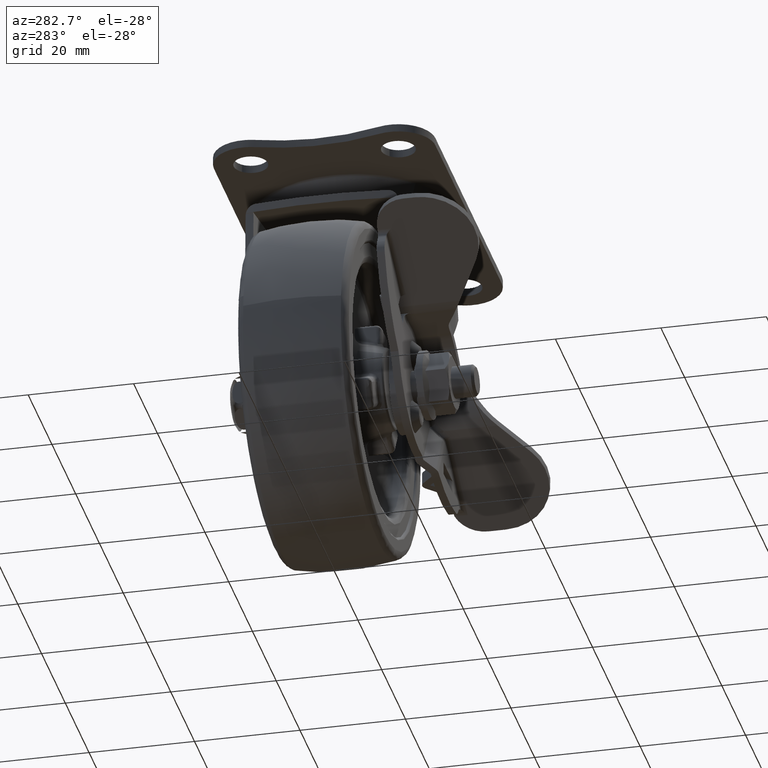
[diagram: clean part render]
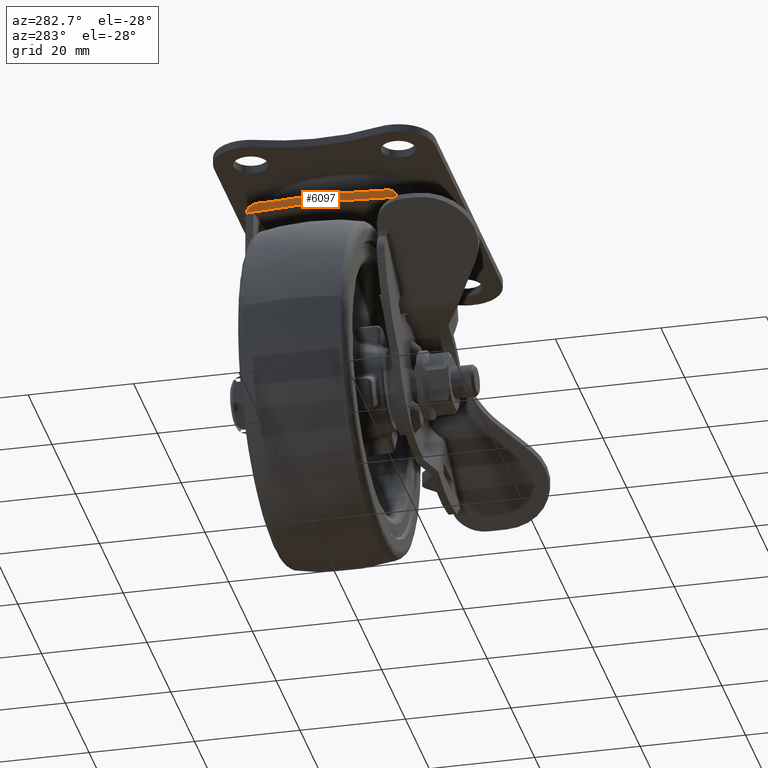
[diagram: same view with one face highlighted and labeled with its STEP entity id]
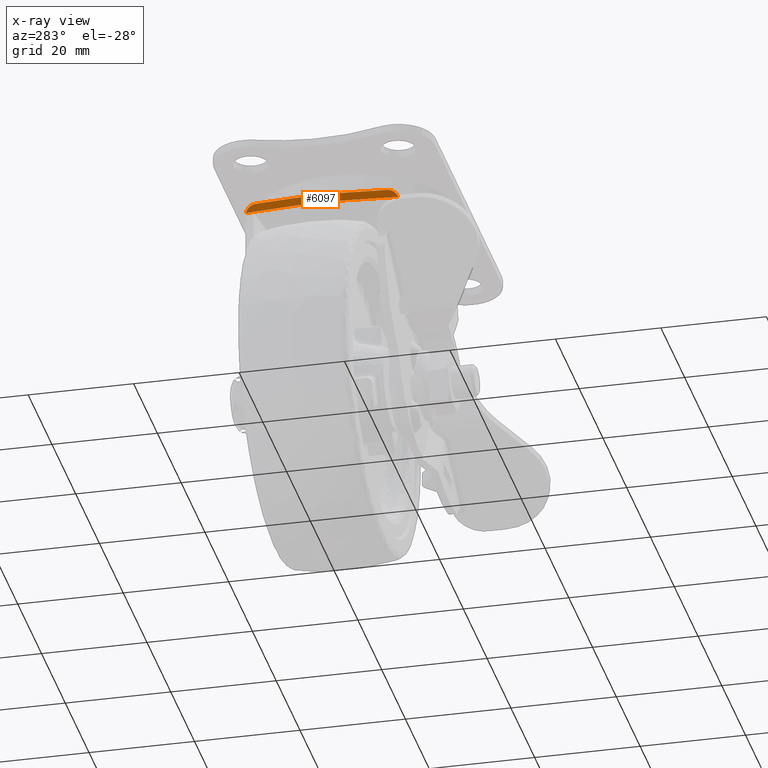
[diagram: x-ray of the same camera — body ghosted, the highlighted face saturated]
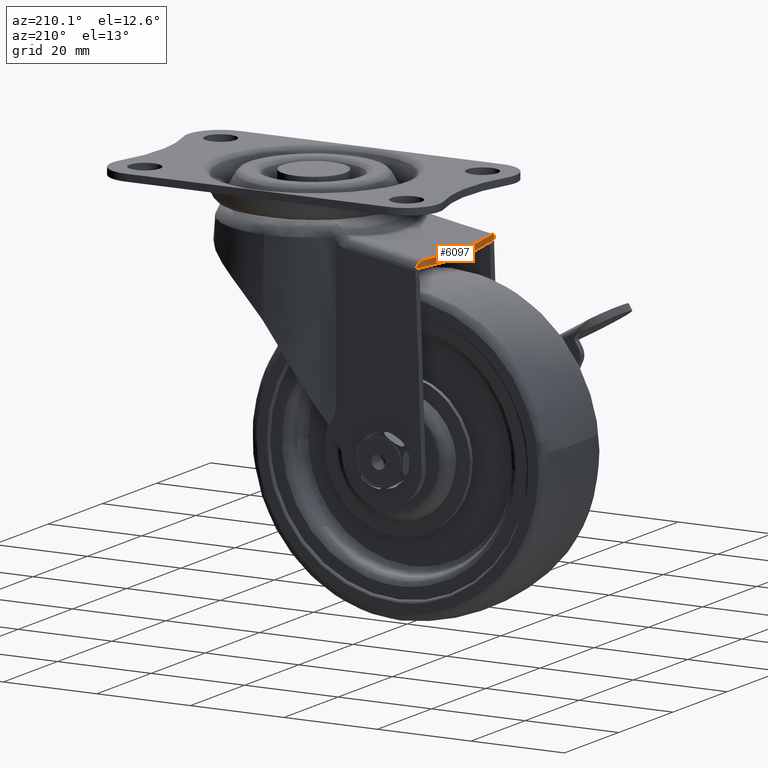
[diagram: same view with one face highlighted and labeled with its STEP entity id]
A machine part, auxiliary view. The second image highlights one B-rep face of the part: STEP entity #6097.
The next image is the same camera in x-ray: the body ghosted, the highlighted face saturated — about 0% of this face is hidden behind the body in this view.
A second angle (auxiliary view) of the same face is appended — the face is thin or edge-on in the first view.
In plain terms, the highlighted face is a freeform B-spline surface patch.
Its self-contained STEP definition (entity closure, byte-faithful):
#2417=CARTESIAN_POINT('',(-30.212149457391099,-14.436506996430680,-11.270600476209360));
#2418=VERTEX_POINT('',#2417);
#2429=CARTESIAN_POINT('',(-30.503806207269850,-12.999999860846460,-11.322026447375920));
#2430=VERTEX_POINT('',#2429);
#2431=CARTESIAN_POINT('',(-30.503806207269850,-12.999999860846460,-11.322026447375920));
#2432=CARTESIAN_POINT('',(-30.411681582006558,-13.479879688466500,-11.305782700833189));
#2433=CARTESIAN_POINT('',(-30.314454100297130,-13.958757557622240,-11.288639200217920));
#2434=CARTESIAN_POINT('',(-30.212149457391099,-14.436506996430680,-11.270600476209360));
#2435=B_SPLINE_CURVE_WITH_KNOTS('',3,(#2431,#2432,#2433,#2434),.UNSPECIFIED.,.F.,.U.,(4,4),(1.296496E-011,1.466748038307977),.UNSPECIFIED.);
#2436=EDGE_CURVE('',#2430,#2418,#2435,.T.);
#2477=CARTESIAN_POINT('',(-30.503806180555902,13.0,-11.322026442665621));
#2478=VERTEX_POINT('',#2477);
#2489=CARTESIAN_POINT('',(-30.212149457391050,14.436506996430699,-11.270600476209360));
#2490=VERTEX_POINT('',#2489);
#2491=CARTESIAN_POINT('',(-30.212149457391050,14.436506996430699,-11.270600476209360));
#2492=CARTESIAN_POINT('',(-30.314453952191009,13.958758313176160,-11.288639174103331));
#2493=CARTESIAN_POINT('',(-30.411681413850420,13.479880488084451,-11.305782671183280));
#2494=CARTESIAN_POINT('',(-30.503806180555902,13.0,-11.322026442665621));
#2495=B_SPLINE_CURVE_WITH_KNOTS('',3,(#2491,#2492,#2493,#2494),.UNSPECIFIED.,.F.,.U.,(4,4),(1.295986E-011,1.466747896534677),.UNSPECIFIED.);
#2496=EDGE_CURVE('',#2490,#2478,#2495,.T.);
#3902=CARTESIAN_POINT('',(-30.858344562454050,-12.500016196939679,-9.861400890232220));
#3903=VERTEX_POINT('',#3902);
#3909=CARTESIAN_POINT('',(-30.212149457391099,-14.436506996430699,-11.270600476209360));
#3910=CARTESIAN_POINT('',(-30.236980760476062,-14.408501695049781,-11.164841311337440));
#3911=CARTESIAN_POINT('',(-30.262940398237230,-14.371885668749490,-11.063366908852410));
#3912=CARTESIAN_POINT('',(-30.316920014841340,-14.282281619720100,-10.868541369774579));
#3913=CARTESIAN_POINT('',(-30.344940688390270,-14.229291594517610,-10.775191349450539));
#3914=CARTESIAN_POINT('',(-30.402993999263170,-14.106387559233159,-10.596855791280991));
#3915=CARTESIAN_POINT('',(-30.432257036031618,-14.038090273377900,-10.514241922793440));
#3916=CARTESIAN_POINT('',(-30.490952385564370,-13.888821477538791,-10.361875565269621));
#3917=CARTESIAN_POINT('',(-30.520411373891410,-13.807792936798309,-10.292045233375930));
#3918=CARTESIAN_POINT('',(-30.579425273903180,-13.632547529157980,-10.165436076527319));
#3919=CARTESIAN_POINT('',(-30.608266000542230,-13.540428621415931,-10.110206729026141));
#3920=CARTESIAN_POINT('',(-30.664290377455249,-13.348447196284960,-10.015654393971650));
#3921=CARTESIAN_POINT('',(-30.691521176433259,-13.248444731640710,-9.976233018041842));
#3922=CARTESIAN_POINT('',(-30.731087911950670,-13.092224731888921,-9.929230876192797));
#3923=CARTESIAN_POINT('',(-30.743980000806921,-13.039423783149189,-9.915705597354604));
#3924=CARTESIAN_POINT('',(-30.768919372265760,-12.933436531526890,-9.893118288610218));
#3925=CARTESIAN_POINT('',(-30.781007230270969,-12.880090931004730,-9.884007281741994));
#3926=CARTESIAN_POINT('',(-30.816129234269990,-12.719008594869910,-9.863144850771466));
#3927=CARTESIAN_POINT('',(-30.838028559041941,-12.610233377083871,-9.857818699159573));
#3928=CARTESIAN_POINT('',(-30.858344562454050,-12.500016196939679,-9.861400890232220));
#3929=B_SPLINE_CURVE_WITH_KNOTS('',3,(#3909,#3910,#3911,#3912,#3913,#3914,#3915,#3916,#3917,#3918,#3919,#3920,#3921,#3922,#3923,#3924,#3925,#3926,#3927,#3928),.UNSPECIFIED.,.F.,.U.,(4,2,2,2,2,2,2,2,2,4),(0.0,0.125000000000000,0.250000000000000,0.375000000000000,0.500000000000000,0.625000000000000,0.750000000000000,0.812500000000000,0.874999999999999,1.0),.UNSPECIFIED.);
#3930=EDGE_CURVE('',#2418,#3903,#3929,.T.);
#4256=CARTESIAN_POINT('',(-30.858344562454050,12.500016196939679,-9.861400890232220));
#4257=VERTEX_POINT('',#4256);
#4258=CARTESIAN_POINT('',(-30.858344562454050,12.500016196939679,-9.861400890232220));
#4259=CARTESIAN_POINT('',(-30.838026603144680,12.610243988101930,-9.857818354288717));
#4260=CARTESIAN_POINT('',(-30.794269012771121,12.827570815279721,-9.868479703317334));
#4261=CARTESIAN_POINT('',(-30.744574133775661,13.038916495563599,-9.913267838751649));
#4262=CARTESIAN_POINT('',(-30.705037922893101,13.195106993781740,-9.960147950743764));
#4263=CARTESIAN_POINT('',(-30.691542481102498,13.246519769169501,-9.977941967063064));
#4264=CARTESIAN_POINT('',(-30.664275501093321,13.346790368974579,-10.017348922744080));
#4265=CARTESIAN_POINT('',(-30.650454784776120,13.395844004488749,-10.039018686541899));
#4266=CARTESIAN_POINT('',(-30.608456599954248,13.539803780252740,-10.109857389365430));
#4267=CARTESIAN_POINT('',(-30.579745831379700,13.631531007528499,-10.164814718961489));
#4268=CARTESIAN_POINT('',(-30.535662374837131,13.762535736598389,-10.259293097833780));
#4269=CARTESIAN_POINT('',(-30.520779533624221,13.805133138862841,-10.292864478585861));
#4270=CARTESIAN_POINT('',(-30.491241165330361,13.886517815907469,-10.362830928864510));
#4271=CARTESIAN_POINT('',(-30.476517010013350,13.925515280427540,-10.399366563510689));
#4272=CARTESIAN_POINT('',(-30.432502209698590,14.037500277773830,-10.513569073505501));
#4273=CARTESIAN_POINT('',(-30.403367947783629,14.105515372608920,-10.595799404255009));
#4274=CARTESIAN_POINT('',(-30.360088638183399,14.197261150762481,-10.728613071890010));
#4275=CARTESIAN_POINT('',(-30.345678490935331,14.226215549513491,-10.774661886240960));
#4276=CARTESIAN_POINT('',(-30.317482208715351,14.279678720235200,-10.868516952573890));
#4277=CARTESIAN_POINT('',(-30.303654850783989,14.304287290516431,-10.916435350198050));
#4278=CARTESIAN_POINT('',(-30.262996048362069,14.371820991466610,-11.063132804187481));
#4279=CARTESIAN_POINT('',(-30.236982689955308,14.408499518939790,-11.164833093479579));
#4280=CARTESIAN_POINT('',(-30.212149457391099,14.436506996430699,-11.270600476209360));
#4281=B_SPLINE_CURVE_WITH_KNOTS('',3,(#4258,#4259,#4260,#4261,#4262,#4263,#4264,#4265,#4266,#4267,#4268,#4269,#4270,#4271,#4272,#4273,#4274,#4275,#4276,#4277,#4278,#4279,#4280),.UNSPECIFIED.,.F.,.U.,(4,1,2,2,2,2,2,2,2,2,2,4),(0.0,0.125000000000000,0.250000000000000,0.312500000000000,0.375000000000001,0.500000000000002,0.562500000000002,0.625000000000002,0.750000000000001,0.812500000000000,0.875000000000000,1.0),.UNSPECIFIED.);
#4282=EDGE_CURVE('',#4257,#2490,#4281,.T.);
#6054=CARTESIAN_POINT('',(-30.858344562454050,12.500016196939679,-9.861400890232220));
#6055=CARTESIAN_POINT('',(-31.309188454910469,10.054359118454640,-9.940895313123932));
#6056=CARTESIAN_POINT('',(-31.962628321718210,4.982644472062059,-10.056112189686891));
#6057=CARTESIAN_POINT('',(-32.106091183531092,-3.411194992856641,-10.081408079455040));
#6058=CARTESIAN_POINT('',(-31.451661123094439,-9.282060635276322,-9.966016608376291));
#6059=CARTESIAN_POINT('',(-30.858344562454050,-12.500016196939679,-9.861400890232220));
#6060=B_SPLINE_CURVE_WITH_KNOTS('',3,(#6054,#6055,#6056,#6057,#6058,#6059),.UNSPECIFIED.,.F.,.U.,(4,1,1,4),(5.909726E-010,7.464414000355834,15.321691723837111,25.143289194458049),.UNSPECIFIED.);
#6061=EDGE_CURVE('',#4257,#3903,#6060,.T.);
#6067=CARTESIAN_POINT('',(-30.163336364519342,15.839482387846731,-9.700776059441626));
#6068=CARTESIAN_POINT('',(-29.889682762352830,15.839482387846761,-11.252772422172558));
#6069=CARTESIAN_POINT('',(-33.903193995989675,-0.001367149591873,-10.360201259795549));
#6070=CARTESIAN_POINT('',(-33.629540393823156,-0.001367149591836,-11.912197622526474));
#6071=CARTESIAN_POINT('',(-30.162725861915387,-15.842068059867991,-9.700668413419047));
#6072=CARTESIAN_POINT('',(-29.889072259748868,-15.842068059867952,-11.252664776149983));
#6080=(BOUNDED_SURFACE()B_SPLINE_SURFACE(1,2,((#6067,#6069,#6071),(#6068,#6070,#6072)),.UNSPECIFIED.,.F.,.F.,.U.)B_SPLINE_SURFACE_WITH_KNOTS((2,2),(3,3),(0.0,1.0),(0.0,32.124182292134861),.UNSPECIFIED.)GEOMETRIC_REPRESENTATION_ITEM()RATIONAL_B_SPLINE_SURFACE(((0.997676489084523,0.969245833809811,0.995750984939081),(0.997676489084523,0.969245833809811,0.995750984939081)))REPRESENTATION_ITEM('')SURFACE());
#6081=ORIENTED_EDGE('',*,*,#6061,.F.);
#6082=ORIENTED_EDGE('',*,*,#4282,.T.);
#6083=ORIENTED_EDGE('',*,*,#2496,.T.);
#6084=CARTESIAN_POINT('',(-30.503806180555902,13.0,-11.322026442665621));
#6085=CARTESIAN_POINT('',(-30.965992615441721,10.592696258498380,-11.403520823590791));
#6086=CARTESIAN_POINT('',(-31.596126309405669,5.997513077391823,-11.514628271610899));
#6087=CARTESIAN_POINT('',(-31.906571288662331,-2.727358120371549,-11.569367051216361));
#6088=CARTESIAN_POINT('',(-31.274461533951190,-8.987859820894174,-11.457911177030701));
#6089=CARTESIAN_POINT('',(-30.503806207269850,-12.999999860846460,-11.322026447375920));
#6090=B_SPLINE_CURVE_WITH_KNOTS('',3,(#6084,#6085,#6086,#6087,#6088,#6089),.UNSPECIFIED.,.F.,.U.,(4,1,1,4),(2.482164E-009,7.357872004981001,13.898196151231749,26.161319849818032),.UNSPECIFIED.);
#6091=EDGE_CURVE('',#2478,#2430,#6090,.T.);
#6092=ORIENTED_EDGE('',*,*,#6091,.T.);
#6093=ORIENTED_EDGE('',*,*,#2436,.T.);
#6094=ORIENTED_EDGE('',*,*,#3930,.T.);
#6095=EDGE_LOOP('',(#6081,#6082,#6083,#6092,#6093,#6094));
#6096=FACE_OUTER_BOUND('',#6095,.T.);
#6097=ADVANCED_FACE('',(#6096),#6080,.T.);